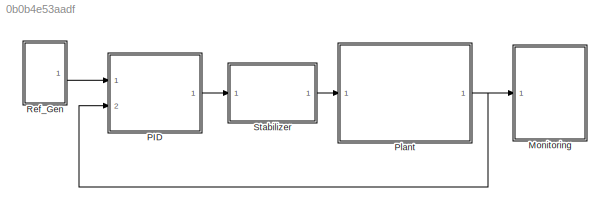
MODEL slx_0b0b4e53aadf
KIND model
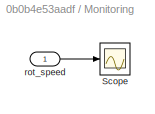
BLOCK [SubSystem] Monitoring
  Ports = [1]
  RequestExecContextInheritance = off
  Tag = Monitoring
BLOCK [Scope] Monitoring/Scope
  DataFormat = StructureWithTime
  Floating = off
  NumInputPorts = 1
  Ports = [1]
  SampleTime = 0
  ShowLegends = off
BLOCK [Inport] Monitoring/rot_speed
  IconDisplay = Port number
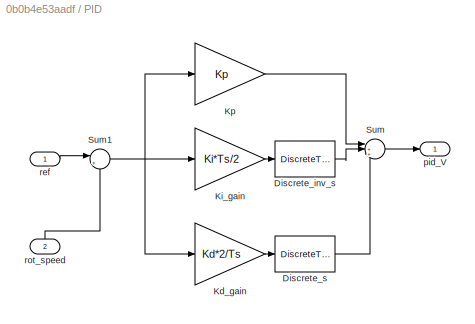
BLOCK [SubSystem] PID
  Ports = [2, 1]
  RequestExecContextInheritance = off
  SystemSampleTime = Ts
  TreatAsAtomicUnit = on
BLOCK [DiscreteTransferFcn] PID/Discrete_inv_s
  Denominator = [1 -1]
  DialogController = Simulink.DDGSource
  InputPortMap = u0
  Numerator = [1 1]
  Ports = [1, 1]
BLOCK [DiscreteTransferFcn] PID/Discrete_s
  Denominator = [1 1]
  InputPortMap = u0
  Numerator = [1 -1]
  Ports = [1, 1]
BLOCK [Gain] PID/Kd_gain
  Gain = Kd*2/Ts
  OutDataTypeStr = Inherit: Inherit via internal rule
  ParamDataTypeStr = Inherit: Inherit via internal rule
  SaturateOnIntegerOverflow = off
BLOCK [Gain] PID/Ki_gain
  Gain = Ki*Ts/2
  OutDataTypeStr = Inherit: Inherit via internal rule
  ParamDataTypeStr = Inherit: Inherit via internal rule
  SaturateOnIntegerOverflow = off
BLOCK [Gain] PID/Kp
  Gain = Kp
  OutDataTypeStr = Inherit: Inherit via internal rule
  ParamDataTypeStr = Inherit: Inherit via internal rule
  SaturateOnIntegerOverflow = off
BLOCK [Sum] PID/Sum
  IconShape = round
  InputSameDT = off
  Inputs = |+++
  OutDataTypeStr = Inherit: Inherit via internal rule
  Ports = [3, 1]
  SaturateOnIntegerOverflow = off
BLOCK [Sum] PID/Sum1
  IconShape = round
  InputSameDT = off
  Inputs = |+-
  OutDataTypeStr = Inherit: Inherit via internal rule
  Ports = [2, 1]
  SaturateOnIntegerOverflow = off
BLOCK [Outport] PID/pid_V
  IconDisplay = Port number
BLOCK [Inport] PID/ref
  IconDisplay = Port number
BLOCK [Inport] PID/rot_speed
  IconDisplay = Port number
  Port = 2
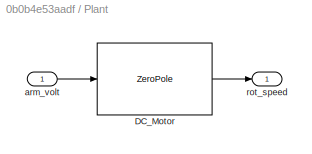
BLOCK [SubSystem] Plant
  Ports = [1, 1]
  RequestExecContextInheritance = off
  Tag = Plant
BLOCK [ZeroPole] Plant/DC_Motor
  Gain = [2]
  Poles = [-9.9975 -2.0025]
  Zeros = []
BLOCK [Inport] Plant/arm_volt
  IconDisplay = Port number
  SampleTime = 0
BLOCK [Outport] Plant/rot_speed
  IconDisplay = Port number
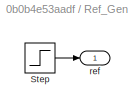
BLOCK [SubSystem] Ref_Gen
  Ports = [0, 1]
  RequestExecContextInheritance = off
  SystemSampleTime = 2*Ts
  TreatAsAtomicUnit = on
BLOCK [Step] Ref_Gen/Step
BLOCK [Outport] Ref_Gen/ref
  IconDisplay = Port number
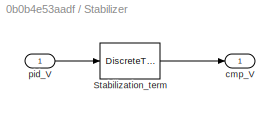
BLOCK [SubSystem] Stabilizer
  Ports = [1, 1]
  RequestExecContextInheritance = off
  SystemSampleTime = Ts
  TreatAsAtomicUnit = on
BLOCK [DiscreteTransferFcn] Stabilizer/Stabilization_term
  Denominator = [1 0.82]
  InputPortMap = u0
  Numerator = [0.6]
  Ports = [1, 1]
BLOCK [Outport] Stabilizer/cmp_V
  IconDisplay = Port number
BLOCK [Inport] Stabilizer/pid_V
  IconDisplay = Port number
LINE Monitoring/rot_speed:1 -> Monitoring/Scope:1
LINE PID/Discrete_inv_s:1 -> PID/Sum:2
LINE PID/Discrete_s:1 -> PID/Sum:3
LINE PID/Kd_gain:1 -> PID/Discrete_s:1
LINE PID/Ki_gain:1 -> PID/Discrete_inv_s:1
LINE PID/Kp:1 -> PID/Sum:1
NET PID/Sum1:1 -> PID/Kd_gain:1, PID/Ki_gain:1, PID/Kp:1
LINE PID/Sum:1 -> PID/pid_V:1
LINE PID/ref:1 -> PID/Sum1:1
LINE PID/rot_speed:1 -> PID/Sum1:2
LINE PID:1 -> Stabilizer:1
LINE Plant/DC_Motor:1 -> Plant/rot_speed:1
LINE Plant/arm_volt:1 -> Plant/DC_Motor:1
NET Plant:1 -> Monitoring:1, PID:2
LINE Ref_Gen/Step:1 -> Ref_Gen/ref:1
LINE Ref_Gen:1 -> PID:1
LINE Stabilizer/Stabilization_term:1 -> Stabilizer/cmp_V:1
LINE Stabilizer/pid_V:1 -> Stabilizer/Stabilization_term:1
LINE Stabilizer:1 -> Plant:1
note: NET lines group one-source signal fan-out (src -> all destinations, sorted); 1:1 wires keep LINE
